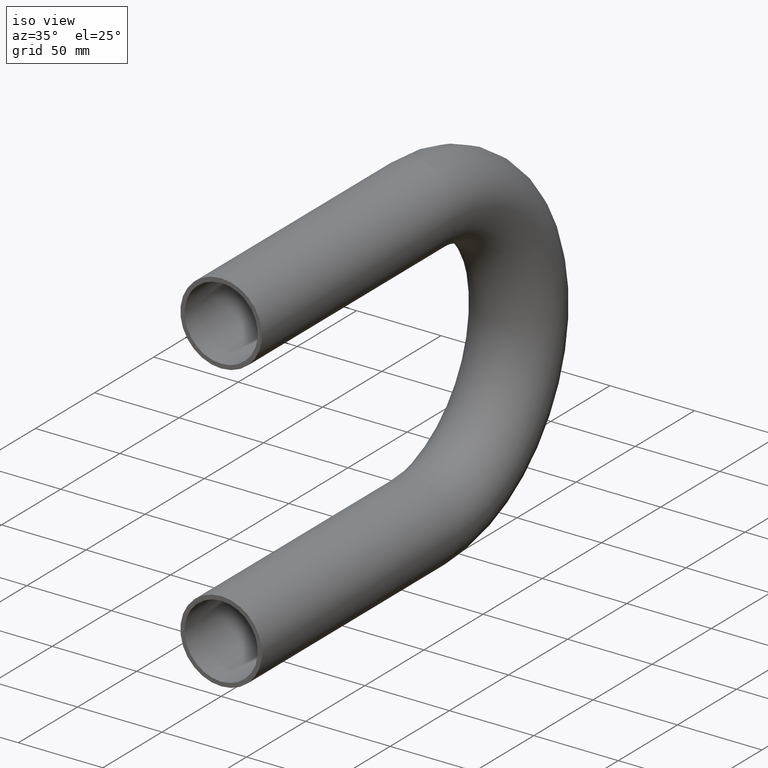
[diagram: clean part render]
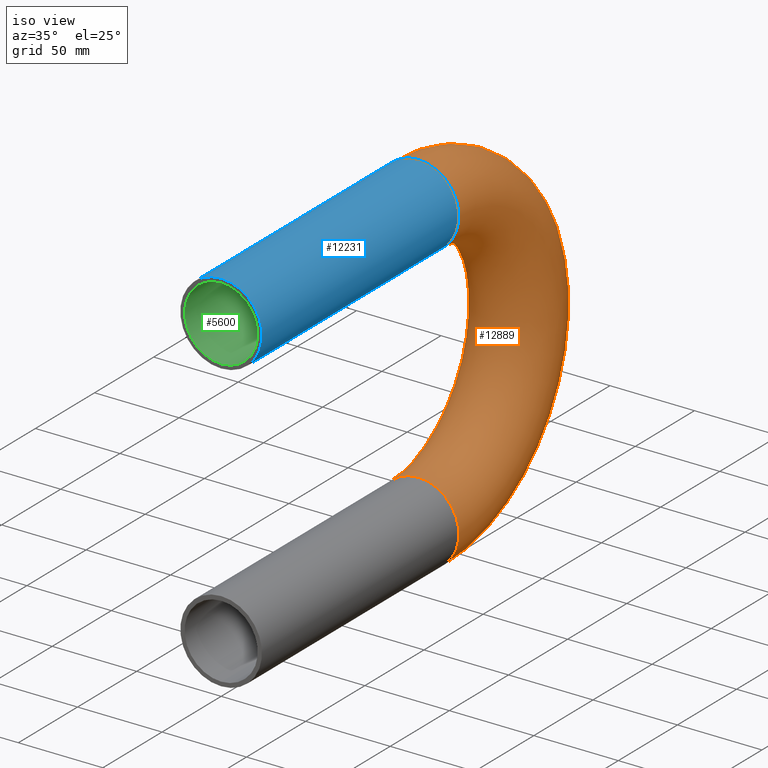
[diagram: same view with three faces highlighted in distinct colors, each labeled with its STEP entity id]
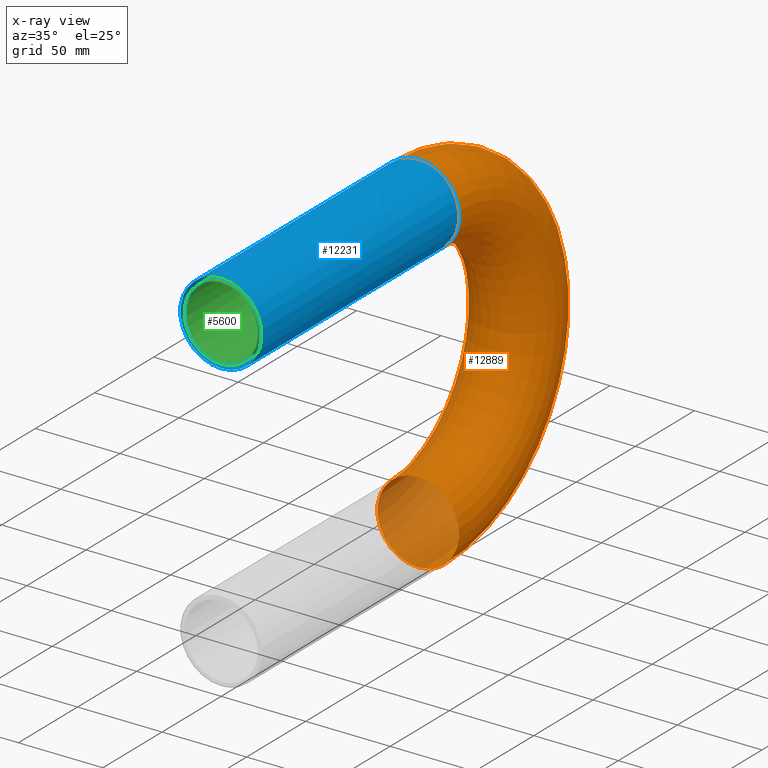
[diagram: x-ray of the same camera — body ghosted, the three highlighted faces saturated]
A machine part, iso view with three faces highlighted in distinct colors.
The next image is the same camera in x-ray (body ghosted, the three faces saturated) — at least one of them is partly hidden behind the body in this view.
Their STEP definitions:

[orange] entity #12889 — the highlighted toroidal blend (fillet) surface has major radius 85 mm and minor (blend) radius 24.15 mm.
#440 = EDGE_LOOP ( 'NONE', ( #3769 ) ) ;
#1526 = DIRECTION ( 'NONE',  ( 0.000000000000000000, -1.000000000000000000, -1.224646799147353207E-16 ) ) ;
#1754 = DIRECTION ( 'NONE',  ( 0.000000000000000000, 0.000000000000000000, 1.000000000000000000 ) ) ;
#1842 = CARTESIAN_POINT ( 'NONE',  ( 0.000000000000000000, 166.4823122224337624, 5.220638928328961672E-29 ) ) ;
#2273 = EDGE_CURVE ( 'NONE', #13083, #13083, #11781, .T. ) ;
#2585 = TOROIDAL_SURFACE ( 'NONE', #3021, 85.00000000000000000, 24.15000000000000568 ) ;
#2903 = DIRECTION ( 'NONE',  ( 0.000000000000000000, 1.000000000000000000, 0.000000000000000000 ) ) ;
#2908 = CARTESIAN_POINT ( 'NONE',  ( 0.000000000000000000, 166.4823122224337624, -194.1500000000000057 ) ) ;
#3021 = AXIS2_PLACEMENT_3D ( 'NONE', #7891, #11966, #5930 ) ;
#3271 = EDGE_LOOP ( 'NONE', ( #12206 ) ) ;
#3769 = ORIENTED_EDGE ( 'NONE', *, *, #2273, .F. ) ;
#3877 = EDGE_CURVE ( 'NONE', #9706, #9706, #7978, .T. ) ;
#4497 = DIRECTION ( 'NONE',  ( 0.000000000000000000, 0.000000000000000000, -1.000000000000000000 ) ) ;
#4663 = FACE_OUTER_BOUND ( 'NONE', #3271, .T. ) ;
#5631 = FACE_OUTER_BOUND ( 'NONE', #440, .T. ) ;
#5930 = DIRECTION ( 'NONE',  ( 0.000000000000000000, 0.000000000000000000, 1.000000000000000000 ) ) ;
#7891 = CARTESIAN_POINT ( 'NONE',  ( 0.000000000000000000, 166.4823122224337624, -85.00000000000000000 ) ) ;
#7978 = CIRCLE ( 'NONE', #8515, 24.15000000000000568 ) ;
#8507 = CARTESIAN_POINT ( 'NONE',  ( 0.000000000000000000, 166.4823122224337624, -170.0000000000000000 ) ) ;
#8515 = AXIS2_PLACEMENT_3D ( 'NONE', #1842, #2903, #1754 ) ;
#8755 = AXIS2_PLACEMENT_3D ( 'NONE', #8507, #1526, #4497 ) ;
#9706 = VERTEX_POINT ( 'NONE', #11072 ) ;
#11072 = CARTESIAN_POINT ( 'NONE',  ( 0.000000000000000000, 166.4823122224337624, 24.15000000000000568 ) ) ;
#11781 = CIRCLE ( 'NONE', #8755, 24.15000000000000568 ) ;
#11966 = DIRECTION ( 'NONE',  ( -1.000000000000000000, -0.000000000000000000, 0.000000000000000000 ) ) ;
#12206 = ORIENTED_EDGE ( 'NONE', *, *, #3877, .T. ) ;
#12889 = ADVANCED_FACE ( 'NONE', ( #4663, #5631 ), #2585, .T. ) ;
#13083 = VERTEX_POINT ( 'NONE', #2908 ) ;

[blue] entity #12231 — the highlighted cylindrical surface (bore or boss wall) has radius 24.15 mm, axis along (-0, -1, -0).
#71 = EDGE_LOOP ( 'NONE', ( #6333 ) ) ;
#1258 = EDGE_LOOP ( 'NONE', ( #7836 ) ) ;
#1644 = VERTEX_POINT ( 'NONE', #10980 ) ;
#1653 = AXIS2_PLACEMENT_3D ( 'NONE', #2580, #2705, #3747 ) ;
#1754 = DIRECTION ( 'NONE',  ( 0.000000000000000000, 0.000000000000000000, 1.000000000000000000 ) ) ;
#1842 = CARTESIAN_POINT ( 'NONE',  ( 0.000000000000000000, 166.4823122224337624, 5.220638928328961672E-29 ) ) ;
#2580 = CARTESIAN_POINT ( 'NONE',  ( 0.000000000000000000, 0.000000000000000000, 0.000000000000000000 ) ) ;
#2705 = DIRECTION ( 'NONE',  ( 0.000000000000000000, 1.000000000000000000, 0.000000000000000000 ) ) ;
#2903 = DIRECTION ( 'NONE',  ( 0.000000000000000000, 1.000000000000000000, 0.000000000000000000 ) ) ;
#3374 = DIRECTION ( 'NONE',  ( -0.000000000000000000, -1.000000000000000000, -3.135852006520529227E-31 ) ) ;
#3747 = DIRECTION ( 'NONE',  ( 0.000000000000000000, 0.000000000000000000, 1.000000000000000000 ) ) ;
#3877 = EDGE_CURVE ( 'NONE', #9706, #9706, #7978, .T. ) ;
#5021 = AXIS2_PLACEMENT_3D ( 'NONE', #9436, #3374, #8418 ) ;
#5926 = EDGE_CURVE ( 'NONE', #1644, #1644, #6400, .T. ) ;
#6333 = ORIENTED_EDGE ( 'NONE', *, *, #3877, .F. ) ;
#6400 = CIRCLE ( 'NONE', #1653, 24.15000000000000568 ) ;
#6871 = FACE_OUTER_BOUND ( 'NONE', #71, .T. ) ;
#7836 = ORIENTED_EDGE ( 'NONE', *, *, #5926, .T. ) ;
#7978 = CIRCLE ( 'NONE', #8515, 24.15000000000000568 ) ;
#8418 = DIRECTION ( 'NONE',  ( 0.000000000000000000, 0.000000000000000000, -1.000000000000000000 ) ) ;
#8515 = AXIS2_PLACEMENT_3D ( 'NONE', #1842, #2903, #1754 ) ;
#8918 = CYLINDRICAL_SURFACE ( 'NONE', #5021, 24.15000000000000568 ) ;
#9436 = CARTESIAN_POINT ( 'NONE',  ( 0.000000000000000000, 166.4823122224337624, 5.220638928328961672E-29 ) ) ;
#9706 = VERTEX_POINT ( 'NONE', #11072 ) ;
#10339 = FACE_OUTER_BOUND ( 'NONE', #1258, .T. ) ;
#10980 = CARTESIAN_POINT ( 'NONE',  ( 0.000000000000000000, 0.000000000000000000, 24.15000000000000568 ) ) ;
#11072 = CARTESIAN_POINT ( 'NONE',  ( 0.000000000000000000, 166.4823122224337624, 24.15000000000000568 ) ) ;
#12231 = ADVANCED_FACE ( 'NONE', ( #6871, #10339 ), #8918, .T. ) ;

[green] entity #5600 — the highlighted cylindrical surface (bore or boss wall) has radius 21.65 mm, axis along (-0, -1, -0).
#93 = ORIENTED_EDGE ( 'NONE', *, *, #3579, .F. ) ;
#389 = FACE_OUTER_BOUND ( 'NONE', #7729, .T. ) ;
#995 = DIRECTION ( 'NONE',  ( 0.000000000000000000, 0.000000000000000000, 1.000000000000000000 ) ) ;
#1243 = AXIS2_PLACEMENT_3D ( 'NONE', #7413, #1360, #8468 ) ;
#1360 = DIRECTION ( 'NONE',  ( -0.000000000000000000, 1.000000000000000000, -0.000000000000000000 ) ) ;
#2822 = CARTESIAN_POINT ( 'NONE',  ( 0.000000000000000000, 166.4823122224337624, 5.220638928328961672E-29 ) ) ;
#2865 = CARTESIAN_POINT ( 'NONE',  ( 0.000000000000000000, 0.000000000000000000, 21.65000000000000568 ) ) ;
#2930 = ORIENTED_EDGE ( 'NONE', *, *, #6144, .T. ) ;
#3579 = EDGE_CURVE ( 'NONE', #11774, #11774, #6274, .T. ) ;
#3672 = CIRCLE ( 'NONE', #1243, 21.65000000000000568 ) ;
#3852 = CARTESIAN_POINT ( 'NONE',  ( 0.000000000000000000, 166.4823122224337624, -21.65000000000000568 ) ) ;
#4898 = AXIS2_PLACEMENT_3D ( 'NONE', #2822, #4930, #6778 ) ;
#4930 = DIRECTION ( 'NONE',  ( -0.000000000000000000, -1.000000000000000000, -3.135852006520529227E-31 ) ) ;
#5023 = EDGE_LOOP ( 'NONE', ( #2930 ) ) ;
#5159 = VERTEX_POINT ( 'NONE', #3852 ) ;
#5452 = CYLINDRICAL_SURFACE ( 'NONE', #4898, 21.65000000000000568 ) ;
#5600 = ADVANCED_FACE ( 'NONE', ( #10163, #389 ), #5452, .F. ) ;
#5830 = AXIS2_PLACEMENT_3D ( 'NONE', #12042, #13136, #995 ) ;
#6144 = EDGE_CURVE ( 'NONE', #5159, #5159, #3672, .T. ) ;
#6274 = CIRCLE ( 'NONE', #5830, 21.65000000000000568 ) ;
#6778 = DIRECTION ( 'NONE',  ( 0.000000000000000000, 0.000000000000000000, -1.000000000000000000 ) ) ;
#7413 = CARTESIAN_POINT ( 'NONE',  ( 0.000000000000000000, 166.4823122224337624, 0.000000000000000000 ) ) ;
#7729 = EDGE_LOOP ( 'NONE', ( #93 ) ) ;
#8468 = DIRECTION ( 'NONE',  ( 0.000000000000000000, 0.000000000000000000, -1.000000000000000000 ) ) ;
#10163 = FACE_OUTER_BOUND ( 'NONE', #5023, .T. ) ;
#11774 = VERTEX_POINT ( 'NONE', #2865 ) ;
#12042 = CARTESIAN_POINT ( 'NONE',  ( 0.000000000000000000, 0.000000000000000000, 0.000000000000000000 ) ) ;
#13136 = DIRECTION ( 'NONE',  ( 0.000000000000000000, 1.000000000000000000, 0.000000000000000000 ) ) ;